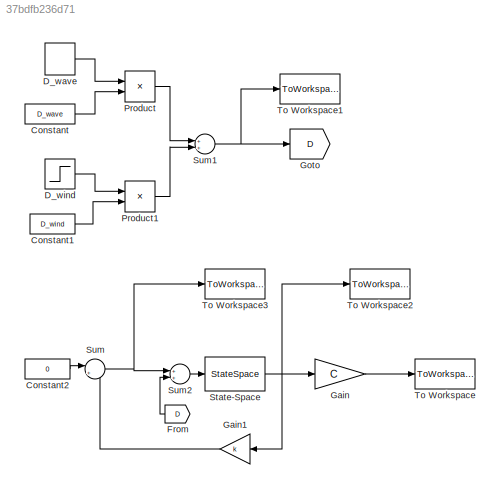
MODEL slx_37bdfb236d71
KIND model
CONFIG AbsTol = auto
CONFIG EnableMultiTasking = off
CONFIG FixedStep = auto
CONFIG InitFcn = w_n = 2 %rad/sec\nzeta = 0.4 % damping ratio\nC = [.5, 0]\n
CONFIG MaxStep = auto
CONFIG MinStep = auto
CONFIG RelTol = 1e-3
CONFIG SampleTimeConstraint = Unconstrained
CONFIG Solver = VariableStepAuto
CONFIG SolverName = VariableStepAuto
CONFIG StartTime = 0.0
CONFIG StopTime = 30
BLOCK [Constant] Constant
  Value = D_wave
BLOCK [Constant] Constant1
  Value = D_wind
BLOCK [Constant] Constant2
  Value = 0
BLOCK [DiscretePulseGenerator] D_wave
  Period = 1
  Ports = [0, 1]
  PulseType = Time based
  PulseWidth = 10
BLOCK [Step] D_wind
  SampleTime = 0
  Time = 10
BLOCK [From] From
  GotoTag = D
BLOCK [Gain] Gain
  Gain = C
  Multiplication = Matrix(K*u)
  OutDataTypeStr = Inherit: Inherit via internal rule
  ParamDataTypeStr = Inherit: Inherit via internal rule
  SaturateOnIntegerOverflow = off
BLOCK [Gain] Gain1
  Gain = k
  Multiplication = Matrix(K*u)
  OutDataTypeStr = Inherit: Inherit via internal rule
  ParamDataTypeStr = Inherit: Inherit via internal rule
  SaturateOnIntegerOverflow = off
BLOCK [Goto] Goto
  GotoTag = D
BLOCK [Product] Product
  InputSameDT = off
  OutDataTypeStr = Inherit: Inherit via internal rule
  Ports = [2, 1]
  RndMeth = Floor
  SaturateOnIntegerOverflow = off
BLOCK [Product] Product1
  InputSameDT = off
  OutDataTypeStr = Inherit: Inherit via internal rule
  Ports = [2, 1]
  RndMeth = Floor
  SaturateOnIntegerOverflow = off
BLOCK [StateSpace] State-Space
  A = [0,1; -w_n^2, -2*w_n*zeta]
  B = [0; 2*w_n^2]
  C = eye(2)
  D = [0;0]
  InitialCondition = x_init
  Ports = [1, 1]
BLOCK [Sum] Sum
  IconShape = round
  InputSameDT = off
  Inputs = |+-
  OutDataTypeStr = Inherit: Inherit via internal rule
  Ports = [2, 1]
  SaturateOnIntegerOverflow = off
BLOCK [Sum] Sum1
  InputSameDT = off
  OutDataTypeStr = Inherit: Inherit via internal rule
  Ports = [2, 1]
  SaturateOnIntegerOverflow = off
BLOCK [Sum] Sum2
  InputSameDT = off
  OutDataTypeStr = Inherit: Inherit via internal rule
  Ports = [2, 1]
  SaturateOnIntegerOverflow = off
BLOCK [ToWorkspace] To Workspace
  FixptAsFi = on
  MaxDataPoints = inf
  Ports = [1]
  SampleTime = -1
  SaveFormat = Structure With Time
  VariableName = Y_gyro
BLOCK [ToWorkspace] To Workspace1
  FixptAsFi = on
  MaxDataPoints = inf
  Ports = [1]
  SampleTime = -1
  SaveFormat = Structure With Time
  VariableName = D_t
BLOCK [ToWorkspace] To Workspace2
  FixptAsFi = on
  MaxDataPoints = inf
  Ports = [1]
  SampleTime = -1
  SaveFormat = Structure With Time
  VariableName = x_t
BLOCK [ToWorkspace] To Workspace3
  FixptAsFi = on
  MaxDataPoints = inf
  Ports = [1]
  SampleTime = -1
  SaveFormat = Structure With Time
  VariableName = u_t
LINE Constant1:1 -> Product1:2
LINE Constant2:1 -> Sum:1
LINE Constant:1 -> Product:2
LINE D_wave:1 -> Product:1
LINE D_wind:1 -> Product1:1
LINE From:1 -> Sum2:2
LINE Gain1:1 -> Sum:2
LINE Gain:1 -> To Workspace:1
LINE Product1:1 -> Sum1:2
LINE Product:1 -> Sum1:1
NET State-Space:1 -> Gain1:1, Gain:1, To Workspace2:1
NET Sum1:1 -> Goto:1, To Workspace1:1
LINE Sum2:1 -> State-Space:1
NET Sum:1 -> Sum2:1, To Workspace3:1
note: NET lines group one-source signal fan-out (src -> all destinations, sorted); 1:1 wires keep LINE
